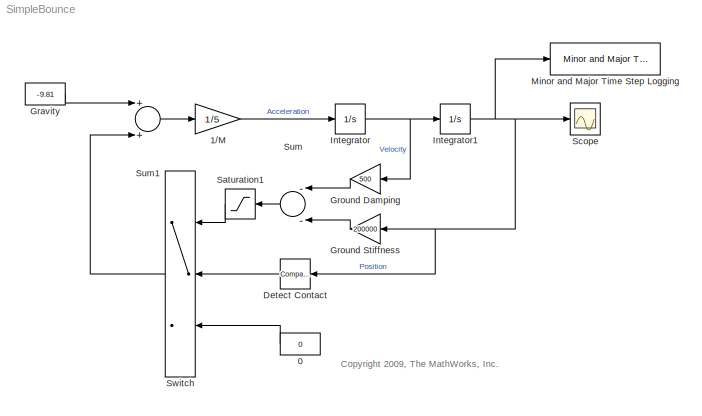
MODEL SimpleBounce
KIND model
BLOCK [Constant] 0
  SID = 1
  Value = 0
BLOCK [Gain] 1//M
  Gain = 1/5
  OutDataTypeStr = Inherit: Inherit via internal rule
  ParamDataTypeStr = Inherit: Inherit via internal rule
  SID = 2
  SaturateOnIntegerOverflow = off
BLOCK [Reference] Detect Contact  REF=simulink/Logic and Bit\nOperations/Compare\nTo Zero
  FunctionWithSeparateData = off
  GeneratePreprocessorConditionals = off
  LogicOutDataTypeMode = uint8
  Ports = [1, 1]
  RTWMemSecDataConstants = Inherit from model
  RTWMemSecDataInternal = Inherit from model
  RTWMemSecDataParameters = Inherit from model
  RTWMemSecFuncExecute = Inherit from model
  RTWMemSecFuncInitTerm = Inherit from model
  SID = 3
  ShowPortLabels = FromPortIcon
  SourceBlock = simulink/Logic and Bit\nOperations/Compare\nTo Zero
  SourceProductBaseCode = SL
  SourceProductName = Simulink
  SourceType = Compare To Zero
  SystemSampleTime = -1
  ZeroCross = on
  relop = <=
BLOCK [Constant] Gravity
  SID = 4
  Value = -9.81
BLOCK [Gain] Ground Damping
  Gain = 500
  OutDataTypeStr = Inherit: Inherit via internal rule
  ParamDataTypeStr = Inherit: Inherit via internal rule
  SID = 5
  SaturateOnIntegerOverflow = off
BLOCK [Gain] Ground Stiffness
  Gain = 200000
  OutDataTypeStr = Inherit: Inherit via internal rule
  ParamDataTypeStr = Inherit: Inherit via internal rule
  SID = 6
  SaturateOnIntegerOverflow = off
BLOCK [Integrator] Integrator
  Ports = [1, 1]
  SID = 7
BLOCK [Integrator] Integrator1
  InitialCondition = 1
  Ports = [1, 1]
  SID = 8
BLOCK [Reference] Minor and Major Time Step Logging  REF=tstbxlib/Minor Time Step Logging Library/Minor and Major Time Step Logging
  Ports = [1]
  SID = 15
  SourceBlock = tstbxlib/Minor Time Step Logging Library/Minor and Major Time Step Logging
  SourceType = Minor and Major Time Step Logging
  enab = on
  majordata = majordata
  minordata = minordata
  n = 999
BLOCK [Saturate] Saturation1
  InputPortMap = u0
  LowerLimit = 0
  Ports = [1, 1]
  SID = 10
  UpperLimit = inf
BLOCK [Scope] Scope
  Floating = off
  NumInputPorts = 1
  Ports = [1]
  SID = 11
  ScopeSpecificationString = C++SS(StrPVP('Location','[188, 390, 512, 629]'),StrPVP('Open','on'),MxPVP('AxesTitles',54,'struct(''axes1'',''%<SignalLabel>'')'),StrPVP('DataFormat','StructureWithTime'),StrPVP('BlockParamSampleTime','0'),StrPVP('LimitDataPoints','on'),StrPVP('Decimation','1'),StrPVP('BlockParamSampleInput','off'))
BLOCK [Sum] Sum
  InputSameDT = off
  Inputs = --
  OutDataTypeStr = Inherit: Inherit via internal rule
  Ports = [2, 1]
  SID = 12
  SaturateOnIntegerOverflow = off
BLOCK [Sum] Sum1
  InputSameDT = off
  OutDataTypeStr = Inherit: Inherit via internal rule
  Ports = [2, 1]
  SID = 13
  SaturateOnIntegerOverflow = off
BLOCK [Switch] Switch
  Criteria = u2 ~= 0
  InputSameDT = off
  SID = 14
  SaturateOnIntegerOverflow = off
ANNOTATION (root): <copyright redacted>
LINE 0:1 -> Switch:3
LINE 1//M:1 -> Integrator:1
LINE Detect Contact:1 -> Switch:2
LINE Gravity:1 -> Sum1:1
LINE Ground Damping:1 -> Sum:1
LINE Ground Stiffness:1 -> Sum:2
NET Integrator1:1 -> Detect Contact:1, Ground Stiffness:1, Minor and Major Time Step Logging:1, Scope:1
NET Integrator:1 -> Ground Damping:1, Integrator1:1
LINE Saturation1:1 -> Switch:1
LINE Sum1:1 -> 1//M:1
LINE Sum:1 -> Saturation1:1
LINE Switch:1 -> Sum1:2
note: NET lines group one-source signal fan-out (src -> all destinations, sorted); 1:1 wires keep LINE
